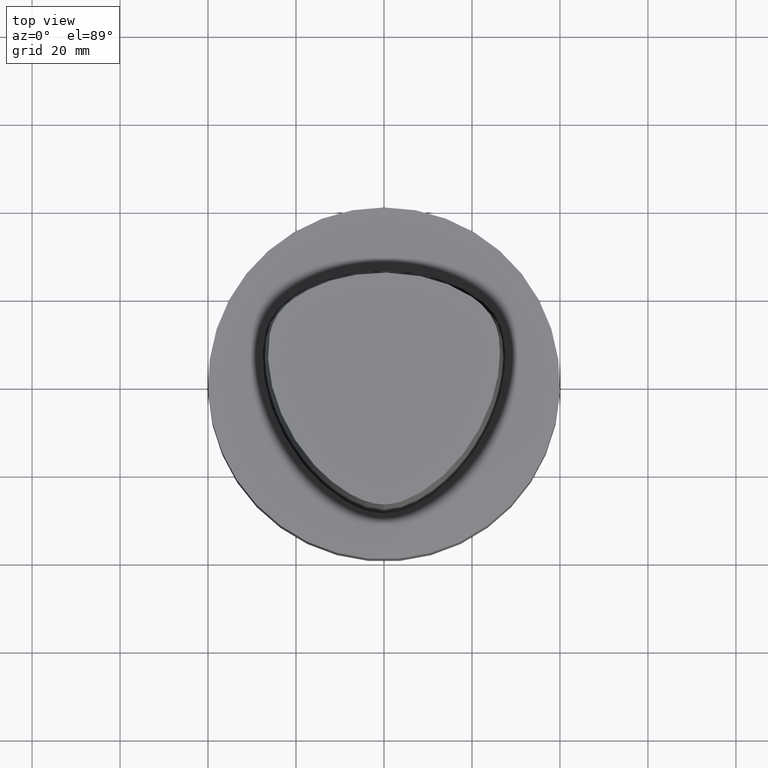
[diagram: clean part render]
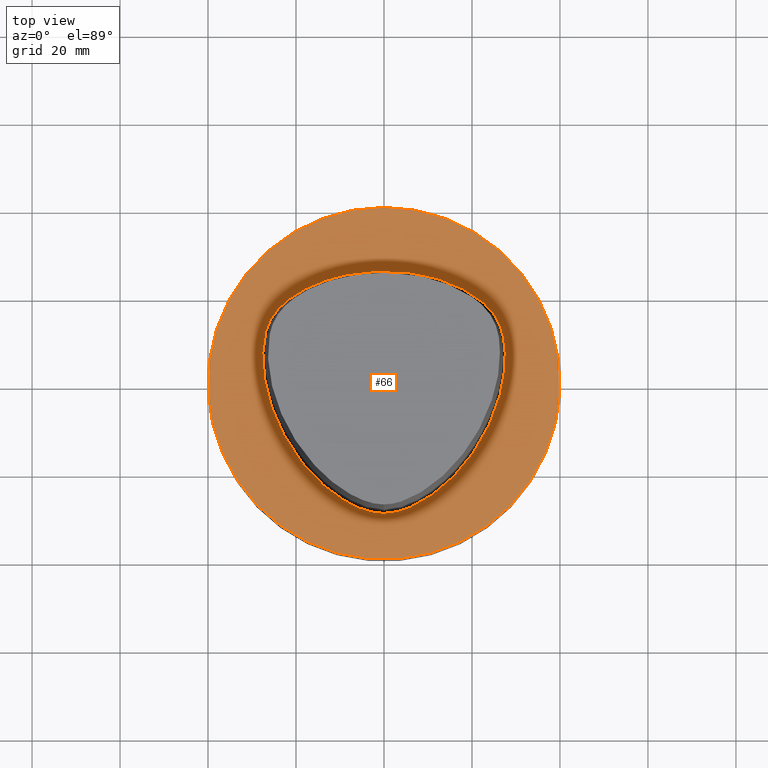
[diagram: same view with one face highlighted and labeled with its STEP entity id]
A machine part, top view. The second image highlights one B-rep face of the part: STEP entity #66.
In plain terms, the highlighted planar face has unit normal (-0, -0, 1).
Its self-contained STEP definition (entity closure, byte-faithful):
#46=EDGE_CURVE('Unnamed[1]',#107,#107,#108,.T.);
#48=EDGE_CURVE('Unnamed[1]',#110,#110,#111,.T.);
#66=ADVANCED_FACE('Unnamed[1]',(#136,#137),#138,.T.);
#107=VERTEX_POINT('',#227);
#108=CIRCLE('',#228,40.0);
#110=VERTEX_POINT('',#231);
#111=B_SPLINE_CURVE_WITH_KNOTS('',3,(#232,#233,#234,#235,#236,#237,#238,#239,#240,#241,#242,#243,#244,#245,#246,#247,#248,#249,#250,#251,#252,#253,#254,#255,#256,#257,#258,#259,#260,#261,#262,#263,#264,#265,#266,#267,#268,#269,#270,#271,#272,#273,#274,#275,#276,#277,#278,#279,#280,#281,#282,#283,#284,#285,#286,#287,#288,#289,#290,#291,#292,#293,#294,#295,#296,#297,#298,#299,#300,#301,#302,#303,#304,#305,#306,#307,#308,#309,#310,#311,#312,#313,#314,#315,#316,#317,#318,#319,#320,#321,#322,#323,#324,#325,#326,#327),.UNSPECIFIED.,.T.,.F.,(4,2,2,2,2,2,2,2,2,2,2,2,2,2,2,2,2,2,2,2,2,2,2,2,2,2,2,2,2,2,2,2,2,2,2,2,2,2,2,2,2,2,2,2,2,2,2,4),(0.0,0.023266238907101,0.04642321916497,0.069037428304488,0.090947532765319,0.112181511979892,0.132874081906891,0.153211623090307,0.173403899120381,0.193668982465133,0.214220857423359,0.235256169578881,0.256931182005521,0.279316100520023,0.302327812922285,0.325615908452607,0.348863915862354,0.37211588966546,0.394944167045003,0.417090524637617,0.438530318382332,0.459402579310312,0.479837360161492,0.499920279645309,0.520144802150986,0.540579089622822,0.561451608096301,0.58289068047617,0.605037731022285,0.627865851215146,0.651117829762372,0.674365843809947,0.697654002942623,0.720665464887439,0.743050887635834,0.764725116248188,0.7857605656535,0.806312370379442,0.826577482765943,0.846769695561797,0.867106984936976,0.887799904832214,0.90903349107026,0.930943318867528,0.953557807681498,0.97671479981417,0.999990517903696,1.0),.UNSPECIFIED.);
#136=FACE_BOUND('',#362,.T.);
#137=FACE_OUTER_BOUND('',#363,.T.);
#138=PLANE('',#364);
#227=CARTESIAN_POINT('',(4.30125394739466E-029,40.0,-7.05601412803411E-013));
#228=AXIS2_PLACEMENT_3D('',#782,#783,#784);
#231=CARTESIAN_POINT('',(-0.00164083163227662,-29.5748662817043,-1.71094801434501E-031));
#232=CARTESIAN_POINT('',(-0.00164083163227662,-29.5748662817043,-1.71094801434501E-031));
#233=CARTESIAN_POINT('',(-1.34367882227266,-29.5936106625075,-3.82104500966428E-031));
#234=CARTESIAN_POINT('',(-2.68740420004953,-29.3328889282446,-2.71170936169723E-031));
#235=CARTESIAN_POINT('',(-5.26074084631931,-28.5400905705423,2.46519032881566E-031));
#236=CARTESIAN_POINT('',(-6.49085836398545,-28.0092939838118,-9.86076131526265E-032));
#237=CARTESIAN_POINT('',(-8.82856305941638,-26.7799538548108,9.86076131526265E-032));
#238=CARTESIAN_POINT('',(-9.93834640062538,-26.0856337015913,-9.86076131526265E-032));
#239=CARTESIAN_POINT('',(-12.0309823905868,-24.5926315357893,-1.97215226305253E-031));
#240=CARTESIAN_POINT('',(-13.0167112443809,-23.7978719690822,-2.95822839457879E-031));
#241=CARTESIAN_POINT('',(-14.8727265816832,-22.1381942733804,0.0));
#242=CARTESIAN_POINT('',(-15.7456368168333,-21.2761980066665,0.0));
#243=CARTESIAN_POINT('',(-17.3879214183881,-19.499427365145,1.97215226305253E-031));
#244=CARTESIAN_POINT('',(-18.1593681806271,-18.5865590846551,1.97215226305253E-031));
#245=CARTESIAN_POINT('',(-19.6094862833069,-16.7150017171437,0.0));
#246=CARTESIAN_POINT('',(-20.289522306802,-15.7573675155919,1.97215226305253E-031));
#247=CARTESIAN_POINT('',(-21.5656702578572,-13.797506639011,0.0));
#248=CARTESIAN_POINT('',(-22.1623469365906,-12.7956473319474,-1.97215226305253E-031));
#249=CARTESIAN_POINT('',(-23.2752180864568,-10.74347032584,-1.97215226305253E-031));
#250=CARTESIAN_POINT('',(-23.7911146053519,-9.69299092556668,-1.97215226305253E-031));
#251=CARTESIAN_POINT('',(-24.7420870094788,-7.5381981687329,-1.97215226305253E-031));
#252=CARTESIAN_POINT('',(-25.1759157970854,-6.43333334291294,-1.97215226305253E-031));
#253=CARTESIAN_POINT('',(-25.9554404448504,-4.16361692512216,-1.97215226305253E-031));
#254=CARTESIAN_POINT('',(-26.2988231270793,-2.99796562277024,0.0));
#255=CARTESIAN_POINT('',(-26.8823734669132,-0.603263018451638,0.0));
#256=CARTESIAN_POINT('',(-27.1190847093475,0.626638314508983,0.0));
#257=CARTESIAN_POINT('',(-27.4609002561416,3.14696645819561,0.0));
#258=CARTESIAN_POINT('',(-27.5614402101816,4.43805628657726,0.0));
#259=CARTESIAN_POINT('',(-27.5863066124947,7.05787796805235,0.0));
#260=CARTESIAN_POINT('',(-27.5056201279308,8.38665155837627,0.0));
#261=CARTESIAN_POINT('',(-27.0954571151674,11.0352567744664,0.0));
#262=CARTESIAN_POINT('',(-26.7630041230867,12.3547893226748,0.0));
#263=CARTESIAN_POINT('',(-25.6724521861925,14.8124702450063,0.0));
#264=CARTESIAN_POINT('',(-24.9150869333233,15.9509269437304,0.0));
#265=CARTESIAN_POINT('',(-23.1210312548435,17.9569470053759,0.0));
#266=CARTESIAN_POINT('',(-22.0842931950003,18.8244641174544,0.0));
#267=CARTESIAN_POINT('',(-19.908909483221,20.3616348354058,0.0));
#268=CARTESIAN_POINT('',(-18.7724650249979,21.0346058511353,0.0));
#269=CARTESIAN_POINT('',(-16.4567596515209,22.2069945116741,0.0));
#270=CARTESIAN_POINT('',(-15.2797918086139,22.7109959882008,0.0));
#271=CARTESIAN_POINT('',(-12.9207332535993,23.5857253409895,9.86076131526265E-032));
#272=CARTESIAN_POINT('',(-11.740003999522,23.9601922020954,9.86076131526265E-032));
#273=CARTESIAN_POINT('',(-9.37648722149752,24.5736332451035,-9.86076131526265E-032));
#274=CARTESIAN_POINT('',(-8.19458153545295,24.8159316598014,0.0));
#275=CARTESIAN_POINT('',(-5.83850844197054,25.1759510165757,-9.86076131526265E-032));
#276=CARTESIAN_POINT('',(-4.66469807187812,25.2961766417791,-1.4791141972894E-031));
#277=CARTESIAN_POINT('',(-2.3312699890678,25.4544662638825,4.93038065763132E-032));
#278=CARTESIAN_POINT('',(-1.17175591409117,25.4939093361241,1.72563323017096E-031));
#279=CARTESIAN_POINT('',(1.15545266416126,25.494540252471,1.10933564796705E-031));
#280=CARTESIAN_POINT('',(2.32314720120702,25.4551743644366,1.4791141972894E-031));
#281=CARTESIAN_POINT('',(4.66463729586072,25.2960231489021,9.86076131526265E-032));
#282=CARTESIAN_POINT('',(5.83837051795068,25.1754079607774,9.86076131526265E-032));
#283=CARTESIAN_POINT('',(8.19448404193754,24.8154739309331,0.0));
#284=CARTESIAN_POINT('',(9.37650995847748,24.573664860466,-2.95822839457879E-031));
#285=CARTESIAN_POINT('',(11.7399573199399,23.9602471092435,-9.86076131526265E-032));
#286=CARTESIAN_POINT('',(12.9204914744584,23.585293366417,0.0));
#287=CARTESIAN_POINT('',(15.2795848008339,22.7105342386106,-3.94430452610506E-031));
#288=CARTESIAN_POINT('',(16.4567913745813,22.2070147920283,3.94430452610506E-031));
#289=CARTESIAN_POINT('',(18.7726283764867,21.034903794727,-1.97215226305253E-031));
#290=CARTESIAN_POINT('',(19.9089592260428,20.3617120962174,-1.97215226305253E-031));
#291=CARTESIAN_POINT('',(22.0842485191724,18.8243782496281,0.0));
#292=CARTESIAN_POINT('',(23.12100726512,17.9569227334155,-3.94430452610506E-031));
#293=CARTESIAN_POINT('',(24.9151158158093,15.9509545348034,1.97215226305253E-031));
#294=CARTESIAN_POINT('',(25.6725132300842,14.8124880933032,-1.97215226305253E-031));
#295=CARTESIAN_POINT('',(26.762962807837,12.3547780213407,0.0));
#296=CARTESIAN_POINT('',(27.0952799458876,11.0352256163986,1.97215226305253E-031));
#297=CARTESIAN_POINT('',(27.5055512569286,8.38661456077751,-1.97215226305253E-031));
#298=CARTESIAN_POINT('',(27.5864807188881,7.05785513793989,0.0));
#299=CARTESIAN_POINT('',(27.561392778196,4.43806075995119,1.97215226305253E-031));
#300=CARTESIAN_POINT('',(27.4604014662893,3.14698296007576,-1.97215226305253E-031));
#301=CARTESIAN_POINT('',(27.118611303309,0.626629008731155,0.0));
#302=CARTESIAN_POINT('',(26.8823561320654,-0.603307445442227,0.0));
#303=CARTESIAN_POINT('',(26.2990081949749,-2.99798519998627,0.0));
#304=CARTESIAN_POINT('',(25.9553872246104,-4.1635796118539,0.0));
#305=CARTESIAN_POINT('',(25.1758761789259,-6.43333881304993,0.0));
#306=CARTESIAN_POINT('',(24.7422891917365,-7.53829982079647,0.0));
#307=CARTESIAN_POINT('',(23.7911396305002,-9.69297644170626,0.0));
#308=CARTESIAN_POINT('',(23.2748328680553,-10.7432476936092,0.0));
#309=CARTESIAN_POINT('',(22.1620073500161,-12.7954883285933,0.0));
#310=CARTESIAN_POINT('',(21.5657838219206,-13.797617876684,0.0));
#311=CARTESIAN_POINT('',(20.289692338909,-15.7574429608729,0.0));
#312=CARTESIAN_POINT('',(19.6092541949823,-16.7147675174567,0.0));
#313=CARTESIAN_POINT('',(18.1590928335012,-18.5863673368761,0.0));
#314=CARTESIAN_POINT('',(17.3880163872248,-19.4995970803095,0.0));
#315=CARTESIAN_POINT('',(15.7458756068693,-21.2763690689372,0.0));
#316=CARTESIAN_POINT('',(14.8727251768577,-22.1379896342994,0.0));
#317=CARTESIAN_POINT('',(13.0164986146837,-23.7977451564491,0.0));
#318=CARTESIAN_POINT('',(12.0308072155323,-24.5929843178023,9.86076131526265E-032));
#319=CARTESIAN_POINT('',(9.93827470804141,-26.0847683712151,9.86076131526265E-032));
#320=CARTESIAN_POINT('',(8.82855678381542,-26.7773164869684,9.86076131526265E-032));
#321=CARTESIAN_POINT('',(6.49089493491194,-28.0120447965454,0.0));
#322=CARTESIAN_POINT('',(5.26075348594719,-28.5502192368694,-1.4791141972894E-031));
#323=CARTESIAN_POINT('',(2.68687274960978,-29.3229139791992,9.86076131526265E-032));
#324=CARTESIAN_POINT('',(1.34258338152267,-29.5558632991381,0.0));
#325=CARTESIAN_POINT('',(-0.000546943594638622,-29.5748509568372,-1.12155326605175E-031));
#326=CARTESIAN_POINT('',(-0.00109388747332262,-29.5748586424797,-1.82096676241813E-031));
#327=CARTESIAN_POINT('',(-0.00164083163225662,-29.5748662817043,2.64694996731721E-031));
#362=EDGE_LOOP('',(#809));
#363=EDGE_LOOP('',(#810));
#364=AXIS2_PLACEMENT_3D('',#811,#812,#813);
#782=CARTESIAN_POINT('',(4.35081943503005E-029,8.7016388700601E-029,-7.105427357601E-013));
#783=DIRECTION('',(6.12323399573677E-017,1.22464679914735E-016,-1.0));
#784=DIRECTION('',(-1.23259516440783E-032,1.0,1.22464679914735E-016));
#809=ORIENTED_EDGE('',*,*,#48,.T.);
#810=ORIENTED_EDGE('',*,*,#46,.F.);
#811=CARTESIAN_POINT('',(4.32590585068282E-029,20.0,-7.08050706401705E-013));
#812=DIRECTION('',(-6.12323399573677E-017,-1.22464679914735E-016,1.0));
#813=DIRECTION('',(1.23259516440783E-032,-1.0,-1.22464679914735E-016));